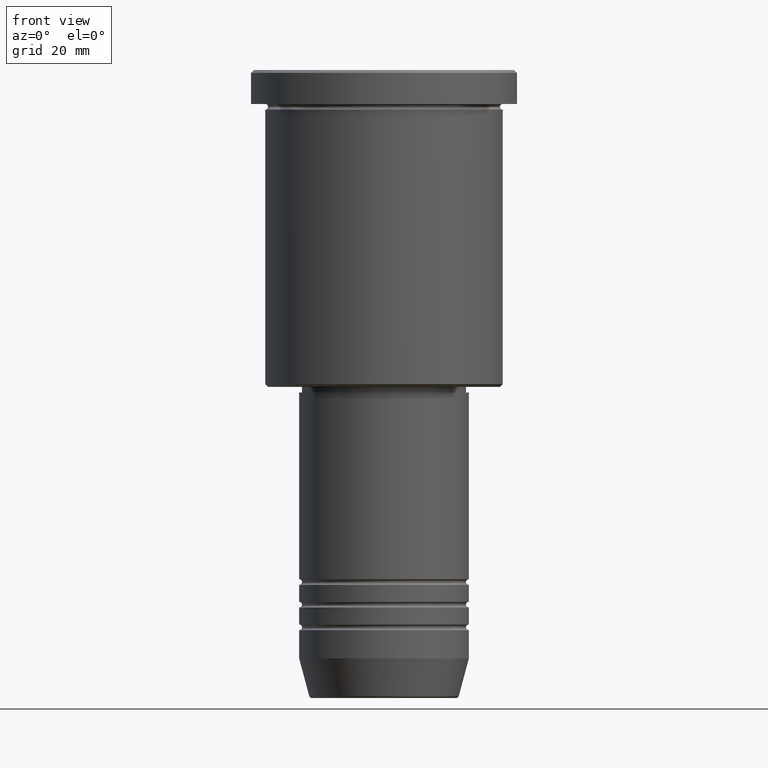
[diagram: clean part render]
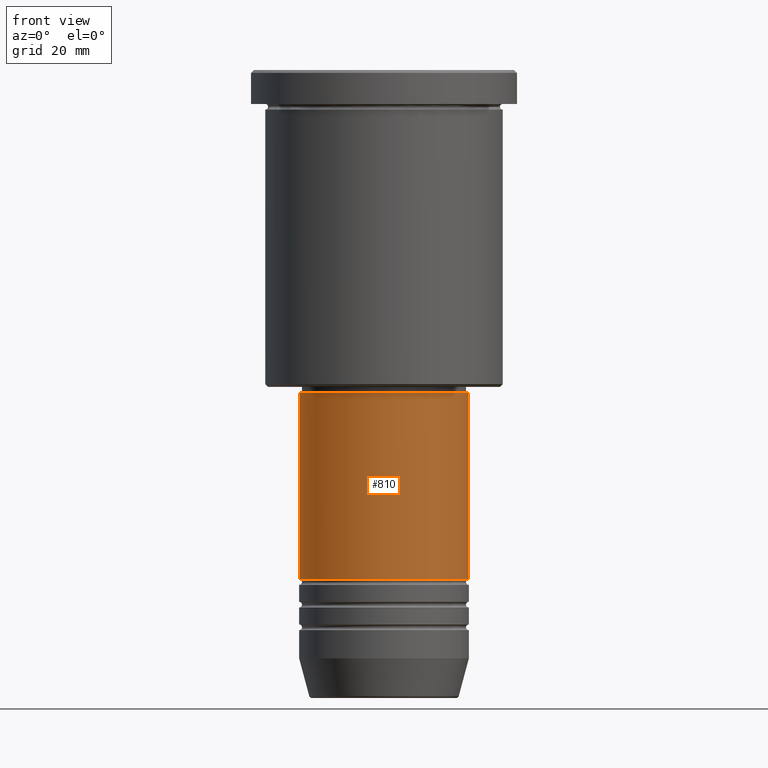
[diagram: same view with one face highlighted and labeled with its STEP entity id]
A machine part, front view. The second image highlights one B-rep face of the part: STEP entity #810.
In plain terms, the highlighted cylindrical surface (partial cylindrical patch) has radius 15 mm, axis along (-0, -0, 1).
Its self-contained STEP definition (entity closure, byte-faithful):
#51 = ORIENTED_EDGE ( 'NONE', *, *, #303, .T. ) ;
#93 = ORIENTED_EDGE ( 'NONE', *, *, #675, .F. ) ;
#94 = CARTESIAN_POINT ( 'NONE',  ( -15.00000000000000000, 1.836970198721029589E-15, -56.99999999999998579 ) ) ;
#100 = CIRCLE ( 'NONE', #210, 15.00000000000000000 ) ;
#126 = CARTESIAN_POINT ( 'NONE',  ( -15.00000000000000000, 1.836970198721029589E-15, 0.000000000000000000 ) ) ;
#210 = AXIS2_PLACEMENT_3D ( 'NONE', #1080, #1178, #345 ) ;
#217 = FACE_OUTER_BOUND ( 'NONE', #994, .T. ) ;
#303 = EDGE_CURVE ( 'NONE', #368, #523, #100, .T. ) ;
#304 = VECTOR ( 'NONE', #1138, 1000.000000000000000 ) ;
#307 = DIRECTION ( 'NONE',  ( 1.000000000000000000, 0.000000000000000000, 0.000000000000000000 ) ) ;
#314 = VERTEX_POINT ( 'NONE', #470 ) ;
#345 = DIRECTION ( 'NONE',  ( 1.000000000000000000, 0.000000000000000000, 0.000000000000000000 ) ) ;
#368 = VERTEX_POINT ( 'NONE', #730 ) ;
#459 = AXIS2_PLACEMENT_3D ( 'NONE', #1160, #568, #833 ) ;
#468 = CARTESIAN_POINT ( 'NONE',  ( 15.00000000000000000, 0.000000000000000000, 0.000000000000000000 ) ) ;
#470 = CARTESIAN_POINT ( 'NONE',  ( 15.00000000000000000, 0.000000000000000000, -56.99999999999998579 ) ) ;
#523 = VERTEX_POINT ( 'NONE', #691 ) ;
#534 = ORIENTED_EDGE ( 'NONE', *, *, #901, .F. ) ;
#568 = DIRECTION ( 'NONE',  ( -0.000000000000000000, -0.000000000000000000, 1.000000000000000000 ) ) ;
#617 = AXIS2_PLACEMENT_3D ( 'NONE', #1127, #763, #307 ) ;
#639 = ORIENTED_EDGE ( 'NONE', *, *, #1136, .T. ) ;
#675 = EDGE_CURVE ( 'NONE', #1171, #314, #1092, .T. ) ;
#691 = CARTESIAN_POINT ( 'NONE',  ( 15.00000000000000000, 0.000000000000000000, -89.99999999999990052 ) ) ;
#711 = VECTOR ( 'NONE', #1016, 1000.000000000000000 ) ;
#730 = CARTESIAN_POINT ( 'NONE',  ( -15.00000000000000000, 1.836970198721029589E-15, -89.99999999999990052 ) ) ;
#763 = DIRECTION ( 'NONE',  ( -0.000000000000000000, -0.000000000000000000, 1.000000000000000000 ) ) ;
#810 = ADVANCED_FACE ( 'NONE', ( #217 ), #858, .T. ) ;
#812 = LINE ( 'NONE', #468, #711 ) ;
#833 = DIRECTION ( 'NONE',  ( 1.000000000000000000, 0.000000000000000000, 0.000000000000000000 ) ) ;
#858 = CYLINDRICAL_SURFACE ( 'NONE', #617, 15.00000000000000000 ) ;
#901 = EDGE_CURVE ( 'NONE', #368, #1171, #947, .T. ) ;
#947 = LINE ( 'NONE', #126, #304 ) ;
#994 = EDGE_LOOP ( 'NONE', ( #534, #51, #639, #93 ) ) ;
#1016 = DIRECTION ( 'NONE',  ( -0.000000000000000000, -0.000000000000000000, 1.000000000000000000 ) ) ;
#1080 = CARTESIAN_POINT ( 'NONE',  ( 0.000000000000000000, 0.000000000000000000, -89.99999999999990052 ) ) ;
#1092 = CIRCLE ( 'NONE', #459, 15.00000000000000000 ) ;
#1127 = CARTESIAN_POINT ( 'NONE',  ( 0.000000000000000000, 0.000000000000000000, 0.000000000000000000 ) ) ;
#1136 = EDGE_CURVE ( 'NONE', #523, #314, #812, .T. ) ;
#1138 = DIRECTION ( 'NONE',  ( -0.000000000000000000, -0.000000000000000000, 1.000000000000000000 ) ) ;
#1160 = CARTESIAN_POINT ( 'NONE',  ( 0.000000000000000000, 0.000000000000000000, -56.99999999999998579 ) ) ;
#1171 = VERTEX_POINT ( 'NONE', #94 ) ;
#1178 = DIRECTION ( 'NONE',  ( -0.000000000000000000, -0.000000000000000000, 1.000000000000000000 ) ) ;